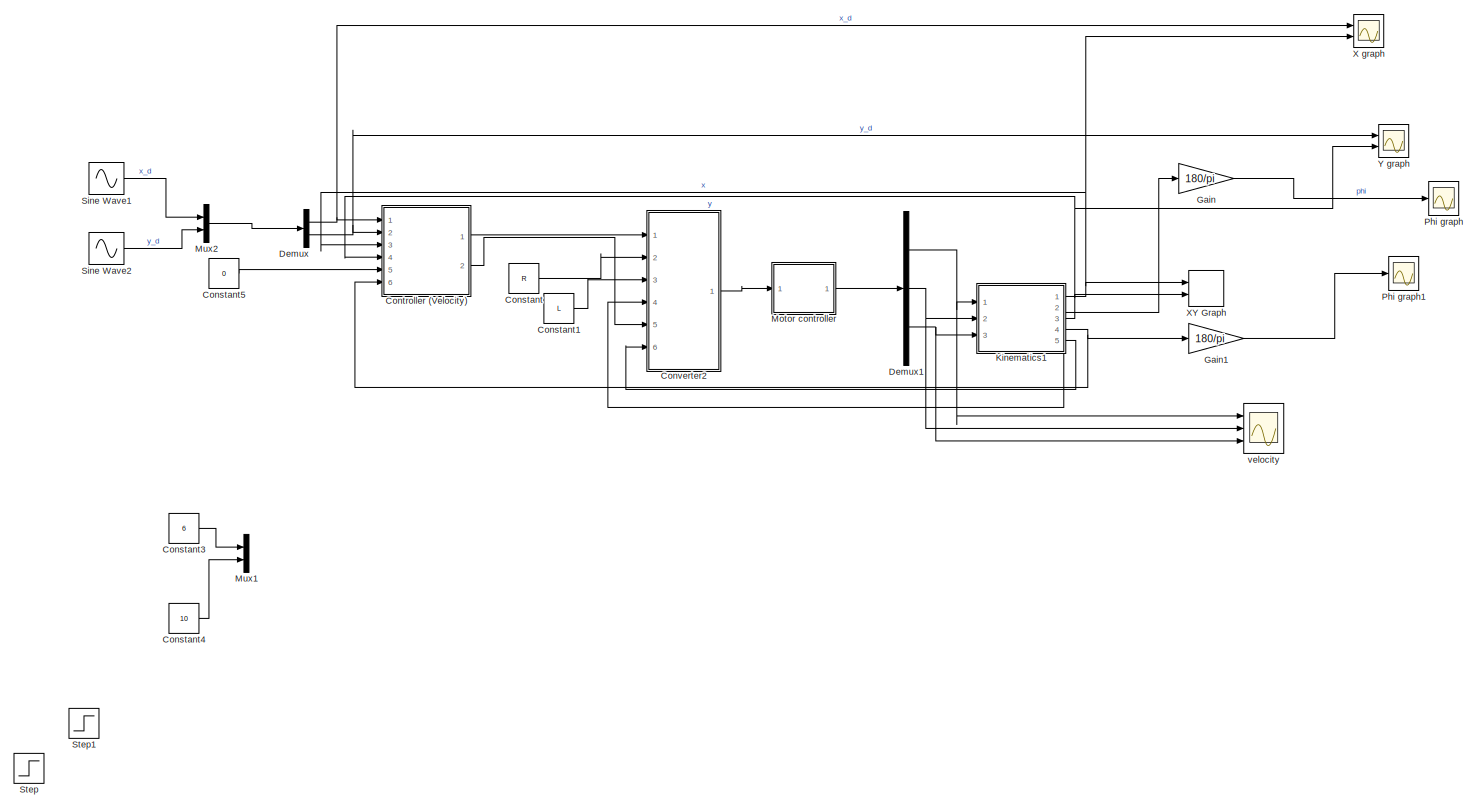
[diagram: root canvas - part 1/1, most of the canvas]
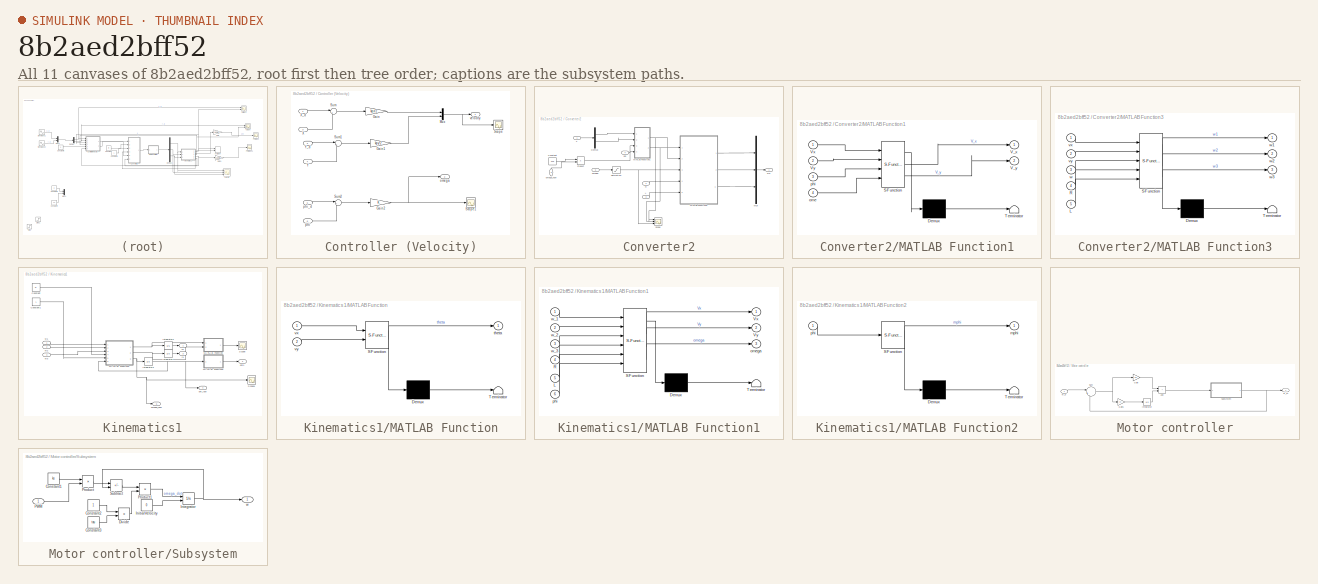
[diagram: thumbnail index - all 11 canvases of the model, root first then tree order]
MODEL slx_8b2aed2bff52
KIND model
CONFIG AbsTol = auto
CONFIG EnableMultiTasking = off
CONFIG FixedStep = auto
CONFIG MaxStep = auto
CONFIG MinStep = auto
CONFIG RelTol = 1e-3
CONFIG SampleTimeConstraint = Unconstrained
CONFIG SolverName = VariableStepAuto
CONFIG StartTime = 0.0
CONFIG StopTime = 200
BLOCK [Constant] Constant
  Value = R
BLOCK [Constant] Constant1
  Value = L
BLOCK [Constant] Constant3
  Value = 6
BLOCK [Constant] Constant4
  Value = 10
BLOCK [Constant] Constant5
  Value = 0
BLOCK [SubSystem] Controller (Velocity)
  Ports = [6, 2]
  RequestExecContextInheritance = off
BLOCK [Gain] Controller (Velocity)/Gain
  Gain = kpx*2
BLOCK [Gain] Controller (Velocity)/Gain1
  Gain = kpy*2
BLOCK [Gain] Controller (Velocity)/Gain2
BLOCK [Mux] Controller (Velocity)/Mux
  DisplayOption = bar
  Inputs = 2
  Ports = [2, 1]
BLOCK [Scope] Controller (Velocity)/Scope
  Floating = off
  NumInputPorts = 1
  Ports = [1]
  ScopeSpecificationString = Simulink.scopes.TimeScopeBlockCfg('CurrentConfiguration', extmgr.ConfigurationSet(extmgr.Configuration('Core','General UI',true),extmgr.Configuration('Core','Source UI',true),extmgr.Configuration('Sources','WiredSimulink',true,'DataLoggingVariableName','ScopeData2'),extmgr.Configuration('Visuals','Time Domain',true,'SerializedDisplays',{struct('MinYLimReal','-4.45958','MaxYLimReal','9.3844','YLabe...<+1367ch>
BLOCK [Scope] Controller (Velocity)/Scope1
  Floating = off
  NumInputPorts = 1
  Ports = [1]
  ScopeSpecificationString = Simulink.scopes.TimeScopeBlockCfg('CurrentConfiguration', extmgr.ConfigurationSet(extmgr.Configuration('Core','General UI',true),extmgr.Configuration('Core','Source UI',true),extmgr.Configuration('Sources','WiredSimulink',true,'DataLoggingVariableName','ScopeData1'),extmgr.Configuration('Visuals','Time Domain',true,'SerializedDisplays',{struct('MinYLimReal','7751.5','MaxYLimReal','10249.83333','YL...<+1409ch>
BLOCK [Sum] Controller (Velocity)/Sum
  Inputs = |+-
  Ports = [2, 1]
BLOCK [Sum] Controller (Velocity)/Sum1
  Inputs = |+-
  Ports = [2, 1]
BLOCK [Sum] Controller (Velocity)/Sum2
  Inputs = |+-
  Ports = [2, 1]
BLOCK [Inport] Controller (Velocity)/X
  Port = 3
BLOCK [Inport] Controller (Velocity)/X_d
BLOCK [Inport] Controller (Velocity)/Y
  Port = 4
BLOCK [Inport] Controller (Velocity)/Y_d
  Port = 2
BLOCK [Outport] Controller (Velocity)/omega
  Port = 2
BLOCK [Inport] Controller (Velocity)/phi
  Port = 6
BLOCK [Inport] Controller (Velocity)/phi_d
  Port = 5
BLOCK [Outport] Controller (Velocity)/velocity
BLOCK [SubSystem] Converter2
  Ports = [6, 1]
  RequestExecContextInheritance = off
BLOCK [Constant] Converter2/Constant
  Value = 0.18
BLOCK [Demux] Converter2/Demux
  Outputs = 2
  Ports = [1, 2]
BLOCK [Inport] Converter2/L
  Port = 3
BLOCK [SubSystem] Converter2/MATLAB Function1
  ErrorFcn = Stateflow.Translate.translate
  PermitHierarchicalResolution = ExplicitOnly
  Ports = [4, 2]
  RequestExecContextInheritance = off
  SFBlockType = MATLAB Function
  TreatAsAtomicUnit = on
BLOCK [Demux] Converter2/MATLAB Function1/ Demux 
  Outputs = 1
  Ports = [1, 1]
BLOCK [S-Function] Converter2/MATLAB Function1/ SFunction 
  EnableBusSupport = on
  FunctionName = sf_sfun
  PortCounts = [4 3]
  Ports = [4, 3]
  SFcnIsStateOwnerBlock = off
  SFunctionDeploymentMode = off
  Tag = Stateflow S-Function 10
BLOCK [Terminator] Converter2/MATLAB Function1/ Terminator 
BLOCK [Outport] Converter2/MATLAB Function1/V_x
BLOCK [Outport] Converter2/MATLAB Function1/V_y
  Port = 2
BLOCK [Inport] Converter2/MATLAB Function1/Vx
BLOCK [Inport] Converter2/MATLAB Function1/Vy
  Port = 2
BLOCK [Inport] Converter2/MATLAB Function1/ome
  Port = 4
BLOCK [Inport] Converter2/MATLAB Function1/phi
  Port = 3
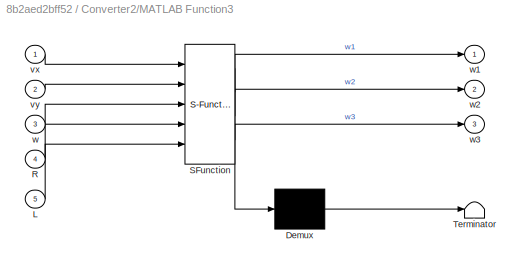
BLOCK [SubSystem] Converter2/MATLAB Function3
  ErrorFcn = Stateflow.Translate.translate
  PermitHierarchicalResolution = ExplicitOnly
  Ports = [5, 3]
  RequestExecContextInheritance = off
  SFBlockType = MATLAB Function
  TreatAsAtomicUnit = on
BLOCK [Demux] Converter2/MATLAB Function3/ Demux 
  Outputs = 1
  Ports = [1, 1]
BLOCK [S-Function] Converter2/MATLAB Function3/ SFunction 
  EnableBusSupport = on
  FunctionName = sf_sfun
  PortCounts = [5 4]
  Ports = [5, 4]
  SFcnIsStateOwnerBlock = off
  SFunctionDeploymentMode = off
  Tag = Stateflow S-Function 11
BLOCK [Terminator] Converter2/MATLAB Function3/ Terminator 
BLOCK [Inport] Converter2/MATLAB Function3/L
  Port = 5
BLOCK [Inport] Converter2/MATLAB Function3/R
  Port = 4
BLOCK [Inport] Converter2/MATLAB Function3/vx
BLOCK [Inport] Converter2/MATLAB Function3/vy
  Port = 2
BLOCK [Inport] Converter2/MATLAB Function3/w
  Port = 3
BLOCK [Outport] Converter2/MATLAB Function3/w1
BLOCK [Outport] Converter2/MATLAB Function3/w2
  Port = 2
BLOCK [Outport] Converter2/MATLAB Function3/w3
  Port = 3
BLOCK [Mux] Converter2/Mux
  DisplayOption = bar
  Inputs = 3
  Ports = [3, 1]
BLOCK [Product] Converter2/Product
  Ports = [2, 1]
BLOCK [Inport] Converter2/R
  Port = 2
BLOCK [Saturate] Converter2/Saturation
  UpperLimit = 10
BLOCK [Scope] Converter2/Scope
  Floating = off
  NumInputPorts = 3
  Ports = [3]
  ScopeSpecificationString = Simulink.scopes.TimeScopeBlockCfg('CurrentConfiguration', extmgr.ConfigurationSet(extmgr.Configuration('Core','General UI',true),extmgr.Configuration('Core','Source UI',true),extmgr.Configuration('Sources','WiredSimulink',true,'DataLoggingVariableName','ScopeData1'),extmgr.Configuration('Visuals','Time Domain',true,'SerializedDisplays',{struct('MinYLimReal','-6.11617','MaxYLimReal','11.2939','YLab...<+3558ch>
BLOCK [Inport] Converter2/omega
  Port = 5
BLOCK [Inport] Converter2/omega_now
  NameLocation = right
  Port = 6
BLOCK [Inport] Converter2/phi
  Port = 4
BLOCK [Inport] Converter2/v
BLOCK [Outport] Converter2/wd
BLOCK [Demux] Demux
  Outputs = 2
  Ports = [1, 2]
BLOCK [Demux] Demux1
  Outputs = 3
  Ports = [1, 3]
BLOCK [Gain] Gain
  Gain = 180/pi
BLOCK [Gain] Gain1
  Gain = 180/pi
BLOCK [SubSystem] Kinematics1
  Ports = [3, 5]
  RequestExecContextInheritance = off
BLOCK [Constant] Kinematics1/Constant
  Value = R
BLOCK [Constant] Kinematics1/Constant1
  Value = L
BLOCK [Integrator] Kinematics1/Integrator1
  Ports = [1, 1]
BLOCK [Integrator] Kinematics1/Integrator2
  Ports = [1, 1]
BLOCK [Integrator] Kinematics1/Integrator3
  Ports = [1, 1]
BLOCK [SubSystem] Kinematics1/MATLAB Function
  ErrorFcn = Stateflow.Translate.translate
  PermitHierarchicalResolution = ExplicitOnly
  Ports = [2, 1]
  RequestExecContextInheritance = off
  SFBlockType = MATLAB Function
  TreatAsAtomicUnit = on
BLOCK [Demux] Kinematics1/MATLAB Function/ Demux 
  Outputs = 1
  Ports = [1, 1]
BLOCK [S-Function] Kinematics1/MATLAB Function/ SFunction 
  EnableBusSupport = on
  FunctionName = sf_sfun
  PortCounts = [2 2]
  Ports = [2, 2]
  SFcnIsStateOwnerBlock = off
  SFunctionDeploymentMode = off
  Tag = Stateflow S-Function 9
BLOCK [Terminator] Kinematics1/MATLAB Function/ Terminator 
BLOCK [Outport] Kinematics1/MATLAB Function/theta
BLOCK [Inport] Kinematics1/MATLAB Function/vx
BLOCK [Inport] Kinematics1/MATLAB Function/vy
  Port = 2
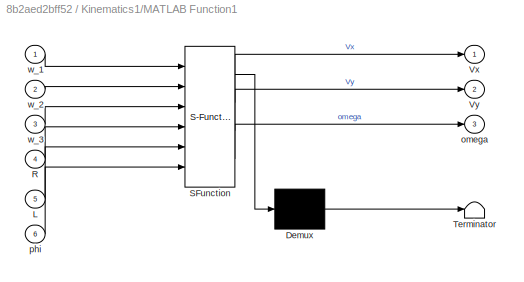
BLOCK [SubSystem] Kinematics1/MATLAB Function1
  ErrorFcn = Stateflow.Translate.translate
  PermitHierarchicalResolution = ExplicitOnly
  Ports = [6, 3]
  RequestExecContextInheritance = off
  SFBlockType = MATLAB Function
  TreatAsAtomicUnit = on
BLOCK [Demux] Kinematics1/MATLAB Function1/ Demux 
  Outputs = 1
  Ports = [1, 1]
BLOCK [S-Function] Kinematics1/MATLAB Function1/ SFunction 
  EnableBusSupport = on
  FunctionName = sf_sfun
  PortCounts = [6 4]
  Ports = [6, 4]
  SFcnIsStateOwnerBlock = off
  SFunctionDeploymentMode = off
  Tag = Stateflow S-Function 2
BLOCK [Terminator] Kinematics1/MATLAB Function1/ Terminator 
BLOCK [Inport] Kinematics1/MATLAB Function1/L
  Port = 5
BLOCK [Inport] Kinematics1/MATLAB Function1/R
  Port = 4
BLOCK [Outport] Kinematics1/MATLAB Function1/Vx
BLOCK [Outport] Kinematics1/MATLAB Function1/Vy
  Port = 2
BLOCK [Outport] Kinematics1/MATLAB Function1/omega
  Port = 3
BLOCK [Inport] Kinematics1/MATLAB Function1/phi
  Port = 6
BLOCK [Inport] Kinematics1/MATLAB Function1/w_1
BLOCK [Inport] Kinematics1/MATLAB Function1/w_2
  Port = 2
BLOCK [Inport] Kinematics1/MATLAB Function1/w_3
  Port = 3
BLOCK [SubSystem] Kinematics1/MATLAB Function2
  ErrorFcn = Stateflow.Translate.translate
  PermitHierarchicalResolution = ExplicitOnly
  Ports = [1, 1]
  RequestExecContextInheritance = off
  SFBlockType = MATLAB Function
  TreatAsAtomicUnit = on
BLOCK [Demux] Kinematics1/MATLAB Function2/ Demux 
  Outputs = 1
  Ports = [1, 1]
BLOCK [S-Function] Kinematics1/MATLAB Function2/ SFunction 
  EnableBusSupport = on
  FunctionName = sf_sfun
  PortCounts = [1 2]
  Ports = [1, 2]
  SFcnIsStateOwnerBlock = off
  SFunctionDeploymentMode = off
  Tag = Stateflow S-Function 5
BLOCK [Terminator] Kinematics1/MATLAB Function2/ Terminator 
BLOCK [Outport] Kinematics1/MATLAB Function2/mphi
BLOCK [Inport] Kinematics1/MATLAB Function2/phi
BLOCK [Scope] Kinematics1/Scope
  Floating = off
  NumInputPorts = 1
  Ports = [1]
  ScopeSpecificationString = Simulink.scopes.TimeScopeBlockCfg('CurrentConfiguration', extmgr.ConfigurationSet(extmgr.Configuration('Core','General UI',true),extmgr.Configuration('Core','Source UI',true),extmgr.Configuration('Sources','WiredSimulink',true,'DataLoggingVariableName','ScopeData1'),extmgr.Configuration('Visuals','Time Domain',true,'SerializedDisplays',{struct('MinYLimReal','-3.90214','MaxYLimReal','3.90677','YLab...<+1405ch>
BLOCK [Scope] Kinematics1/Scope1
  Floating = off
  NumInputPorts = 1
  Ports = [1]
  ScopeSpecificationString = Simulink.scopes.TimeScopeBlockCfg('CurrentConfiguration', extmgr.ConfigurationSet(extmgr.Configuration('Core','General UI',true),extmgr.Configuration('Core','Source UI',true),extmgr.Configuration('Sources','WiredSimulink',true,'DataLoggingVariableName','ScopeData1'),extmgr.Configuration('Visuals','Time Domain',true,'SerializedDisplays',{struct('MinYLimReal','8.93282','MaxYLimReal','10.52957','YLab...<+1431ch>
BLOCK [Outport] Kinematics1/omega_now
  Port = 5
BLOCK [Outport] Kinematics1/phi1
  Port = 2
BLOCK [Outport] Kinematics1/phi_raw
  Port = 4
BLOCK [Inport] Kinematics1/w1
BLOCK [Inport] Kinematics1/w2
  Port = 2
BLOCK [Inport] Kinematics1/w3
  Port = 3
BLOCK [Outport] Kinematics1/x1
BLOCK [Outport] Kinematics1/y1
  Port = 3
BLOCK [SubSystem] Motor controller
  Ports = [1, 1]
  RequestExecContextInheritance = off
BLOCK [Sum] Motor controller/Add
  IconShape = rectangular
  Ports = [2, 1]
BLOCK [Gain] Motor controller/Gain
  Gain = kp
BLOCK [Gain] Motor controller/Gain1
  Gain = ki
BLOCK [Integrator] Motor controller/Integrator
  Ports = [1, 1]
BLOCK [SubSystem] Motor controller/Subsystem
  Ports = [1, 1]
  RequestExecContextInheritance = off
BLOCK [Constant] Motor controller/Subsystem/Constant1
  Value = ks
BLOCK [Constant] Motor controller/Subsystem/Constant2
BLOCK [Constant] Motor controller/Subsystem/Constant3
  Value = tau
BLOCK [Product] Motor controller/Subsystem/Divide
  Inputs = */
  Ports = [2, 1]
BLOCK [Constant] Motor controller/Subsystem/InitialVelocity
  Value = 0
BLOCK [Integrator] Motor controller/Subsystem/Integrator
  InitialConditionSource = external
  Ports = [2, 1]
BLOCK [Inport] Motor controller/Subsystem/PWM
BLOCK [Product] Motor controller/Subsystem/Product
  Ports = [2, 1]
BLOCK [Product] Motor controller/Subsystem/Product1
  Ports = [2, 1]
BLOCK [Sum] Motor controller/Subsystem/Subtract
  IconShape = rectangular
  Inputs = +-
  Ports = [2, 1]
BLOCK [Outport] Motor controller/Subsystem/w
BLOCK [Sum] Motor controller/Sum
  Inputs = |+-
  Ports = [2, 1]
BLOCK [Inport] Motor controller/w_d
BLOCK [Outport] Motor controller/w_m
BLOCK [Mux] Mux1
  DisplayOption = bar
  Inputs = 2
  Ports = [2, 1]
BLOCK [Mux] Mux2
  DisplayOption = bar
  Inputs = 2
  Ports = [2, 1]
BLOCK [Scope] Phi graph
  Floating = off
  NumInputPorts = 1
  Ports = [1]
  ScopeSpecificationString = Simulink.scopes.TimeScopeBlockCfg('CurrentConfiguration', extmgr.ConfigurationSet(extmgr.Configuration('Core','General UI',true),extmgr.Configuration('Core','Source UI',true),extmgr.Configuration('Sources','WiredSimulink',true,'DataLoggingVariableName','ScopeData3'),extmgr.Configuration('Visuals','Time Domain',true,'SerializedDisplays',{struct('MinYLimReal','-0.00000000000000007','MaxYLimReal','0....<+1667ch>
BLOCK [Scope] Phi graph1
  Floating = off
  NumInputPorts = 1
  Ports = [1]
  ScopeSpecificationString = Simulink.scopes.TimeScopeBlockCfg('CurrentConfiguration', extmgr.ConfigurationSet(extmgr.Configuration('Core','General UI',true),extmgr.Configuration('Core','Source UI',true),extmgr.Configuration('Sources','WiredSimulink',true,'DataLoggingVariableName','ScopeData4'),extmgr.Configuration('Visuals','Time Domain',true,'SerializedDisplays',{struct('MinYLimReal','-222.0382','MaxYLimReal','222.4418','YL...<+1547ch>
BLOCK [Sin] Sine Wave1
  Amplitude = 5
  Frequency = 0.15
  Ports = [0, 1]
  SampleTime = 0
BLOCK [Sin] Sine Wave2
  Amplitude = 5
  Frequency = 0.15
  Phase = pi/2
  Ports = [0, 1]
  SampleTime = 0
BLOCK [Step] Step
  After = 2
  SampleTime = 0
BLOCK [Step] Step1
  After = 2
  SampleTime = 0
BLOCK [Scope] X graph
  Floating = off
  NumInputPorts = 2
  Ports = [2]
  ScopeSpecificationString = Simulink.scopes.TimeScopeBlockCfg('CurrentConfiguration', extmgr.ConfigurationSet(extmgr.Configuration('Core','General UI',true),extmgr.Configuration('Core','Source UI',true),extmgr.Configuration('Sources','WiredSimulink',true,'DataLoggingVariableName','ScopeData1'),extmgr.Configuration('Visuals','Time Domain',true,'SerializedDisplays',{struct('MinYLimReal','-6.24987','MaxYLimReal','6.24998','YLab...<+1598ch>
BLOCK [Record] XY Graph
  CompatibilityTag = XY
  FileSettingsInternal = {"entries":[{"content":{"excelSettings":{"content":{},"type":"Streamout.ExcelSettings"}},"type":"Streamout.FileSettingStorage","uuid":"f126f158-b8c3-4049-b826-cb05c3c9d9b4"}],"packageUris":["http://schema.mathworks.com/mf0/streamout_blocks/R2020a"],"version":"1.0"}
  Layout = [1 1]
  Ports = [2]
  SignalsInternal = {"entries":[{"content":{"signals":[{"content":{"blockPath":["new_test/XY Graph"],"channel":[],"dimensions":[1],"domain":"new_test/XY Graph","lineColor":"#a2142f","plots":[1],"port":1,"sid":[""],"signalID":9786,"signalName":"x"},"type":"RecordBlkView.Signal","uuid":"c76f9a00-786b-4790-a8b8-06553de90f4f"},{"content":{"blockPath":["new_test/XY Graph"],"channel":[],"dimensions":[1],"domain":"new_test/...<+351ch>
  VisualizationBindings = {"xyplotplugin":{"info":[{"series":[{"bindingParametersList":[{"parameter":"X-Axis","signalID":9786,"signalName":"x"},{"parameter":"Y-Axis","signalID":9790,"signalName":"y"}],"seriesID":123}],"subplotID":1}]}}
BLOCK [Scope] Y graph
  Floating = off
  NumInputPorts = 2
  Ports = [2]
  ScopeSpecificationString = Simulink.scopes.TimeScopeBlockCfg('CurrentConfiguration', extmgr.ConfigurationSet(extmgr.Configuration('Core','General UI',true),extmgr.Configuration('Core','Source UI',true),extmgr.Configuration('Sources','WiredSimulink',true,'DataLoggingVariableName','ScopeData2'),extmgr.Configuration('Visuals','Time Domain',true,'SerializedDisplays',{struct('MinYLimReal','-6.24999','MaxYLimReal','6.25','YLabelR...<+1590ch>
BLOCK [Scope] velocity
  Floating = off
  NumInputPorts = 3
  Ports = [3]
  ScopeSpecificationString = Simulink.scopes.TimeScopeBlockCfg('CurrentConfiguration', extmgr.ConfigurationSet(extmgr.Configuration('Core','General UI',true),extmgr.Configuration('Core','Source UI',true),extmgr.Configuration('Sources','WiredSimulink',true,'DataLoggingVariableName','ScopeData1'),extmgr.Configuration('Visuals','Time Domain',true,'SerializedDisplays',{struct('MinYLimReal','-82.61422','MaxYLimReal','743.52802','Y...<+2789ch>
LINE Constant1:1 -> Converter2:3
LINE Constant3:1 -> Mux1:1
LINE Constant4:1 -> Mux1:2
LINE Constant5:1 -> Controller (Velocity):5
LINE Constant:1 -> Converter2:2
LINE Controller (Velocity)/Gain1:1 -> Controller (Velocity)/Mux:2
NET Controller (Velocity)/Gain2:1 -> Controller (Velocity)/Scope1:1, Controller (Velocity)/omega:1
LINE Controller (Velocity)/Gain:1 -> Controller (Velocity)/Mux:1
NET Controller (Velocity)/Mux:1 -> Controller (Velocity)/Scope:1, Controller (Velocity)/velocity:1
LINE Controller (Velocity)/Sum1:1 -> Controller (Velocity)/Gain1:1
LINE Controller (Velocity)/Sum2:1 -> Controller (Velocity)/Gain2:1
LINE Controller (Velocity)/Sum:1 -> Controller (Velocity)/Gain:1
LINE Controller (Velocity)/X:1 -> Controller (Velocity)/Sum:2
LINE Controller (Velocity)/X_d:1 -> Controller (Velocity)/Sum:1
LINE Controller (Velocity)/Y:1 -> Controller (Velocity)/Sum1:2
LINE Controller (Velocity)/Y_d:1 -> Controller (Velocity)/Sum1:1
LINE Controller (Velocity)/phi:1 -> Controller (Velocity)/Sum2:2
LINE Controller (Velocity)/phi_d:1 -> Controller (Velocity)/Sum2:1
LINE Controller (Velocity):1 -> Converter2:1
LINE Controller (Velocity):2 -> Converter2:5
LINE Converter2/Constant:1 -> Converter2/Product:1
LINE Converter2/Demux:1 -> Converter2/MATLAB Function1:1
LINE Converter2/Demux:2 -> Converter2/MATLAB Function1:2
LINE Converter2/L:1 -> Converter2/MATLAB Function3:5
NET Converter2/MATLAB Function1:1 -> Converter2/MATLAB Function3:1, Converter2/Scope:1
NET Converter2/MATLAB Function1:2 -> Converter2/MATLAB Function3:2, Converter2/Scope:2
LINE Converter2/MATLAB Function3:1 -> Converter2/Mux:1
LINE Converter2/MATLAB Function3:2 -> Converter2/Mux:2
LINE Converter2/MATLAB Function3:3 -> Converter2/Mux:3
LINE Converter2/Mux:1 -> Converter2/wd:1
LINE Converter2/Product:1 -> Converter2/MATLAB Function1:4
LINE Converter2/R:1 -> Converter2/MATLAB Function3:4
NET Converter2/Saturation:1 -> Converter2/MATLAB Function3:3, Converter2/Scope:3
LINE Converter2/omega:1 -> Converter2/Saturation:1
LINE Converter2/omega_now:1 -> Converter2/Product:2
LINE Converter2/phi:1 -> Converter2/MATLAB Function1:3
LINE Converter2/v:1 -> Converter2/Demux:1
LINE Converter2:1 -> Motor controller:1
NET Demux1:1 -> Kinematics1:1, velocity:1
NET Demux1:2 -> Kinematics1:2, velocity:2
NET Demux1:3 -> Kinematics1:3, velocity:3
NET Demux:1 -> Controller (Velocity):1, X graph:1
NET Demux:2 -> Controller (Velocity):2, Y graph:1
LINE Gain1:1 -> Phi graph1:1
LINE Gain:1 -> Phi graph:1
LINE Kinematics1/Constant1:1 -> Kinematics1/MATLAB Function1:5
LINE Kinematics1/Constant:1 -> Kinematics1/MATLAB Function1:4
LINE Kinematics1/Integrator1:1 -> Kinematics1/y1:1
LINE Kinematics1/Integrator2:1 -> Kinematics1/x1:1
NET Kinematics1/Integrator3:1 -> Kinematics1/MATLAB Function1:6, Kinematics1/MATLAB Function2:1, Kinematics1/phi_raw:1
NET Kinematics1/MATLAB Function1:1 -> Kinematics1/Integrator2:1, Kinematics1/MATLAB Function:1
NET Kinematics1/MATLAB Function1:2 -> Kinematics1/Integrator1:1, Kinematics1/MATLAB Function:2
NET Kinematics1/MATLAB Function1:3 -> Kinematics1/Integrator3:1, Kinematics1/Scope1:1, Kinematics1/omega_now:1
LINE Kinematics1/MATLAB Function2:1 -> Kinematics1/phi1:1
LINE Kinematics1/MATLAB Function:1 -> Kinematics1/Scope:1
LINE Kinematics1/w1:1 -> Kinematics1/MATLAB Function1:1
LINE Kinematics1/w2:1 -> Kinematics1/MATLAB Function1:2
LINE Kinematics1/w3:1 -> Kinematics1/MATLAB Function1:3
NET Kinematics1:1 -> Controller (Velocity):3, X graph:2, XY Graph:1
NET Kinematics1:2 -> Converter2:4, Gain:1
NET Kinematics1:3 -> Controller (Velocity):4, XY Graph:2, Y graph:2
NET Kinematics1:4 -> Controller (Velocity):6, Gain1:1
LINE Kinematics1:5 -> Converter2:6
LINE Motor controller/Add:1 -> Motor controller/Subsystem:1
LINE Motor controller/Gain1:1 -> Motor controller/Integrator:1
LINE Motor controller/Gain:1 -> Motor controller/Add:1
LINE Motor controller/Integrator:1 -> Motor controller/Add:2
LINE Motor controller/Subsystem/Constant1:1 -> Motor controller/Subsystem/Product:1
LINE Motor controller/Subsystem/Constant2:1 -> Motor controller/Subsystem/Divide:1
LINE Motor controller/Subsystem/Constant3:1 -> Motor controller/Subsystem/Divide:2
LINE Motor controller/Subsystem/Divide:1 -> Motor controller/Subsystem/Product1:2
LINE Motor controller/Subsystem/InitialVelocity:1 -> Motor controller/Subsystem/Integrator:2
NET Motor controller/Subsystem/Integrator:1 -> Motor controller/Subsystem/Subtract:2, Motor controller/Subsystem/w:1
LINE Motor controller/Subsystem/PWM:1 -> Motor controller/Subsystem/Product:2
LINE Motor controller/Subsystem/Product1:1 -> Motor controller/Subsystem/Integrator:1
LINE Motor controller/Subsystem/Product:1 -> Motor controller/Subsystem/Subtract:1
LINE Motor controller/Subsystem/Subtract:1 -> Motor controller/Subsystem/Product1:1
NET Motor controller/Subsystem:1 -> Motor controller/Sum:2, Motor controller/w_m:1
NET Motor controller/Sum:1 -> Motor controller/Gain1:1, Motor controller/Gain:1
LINE Motor controller/w_d:1 -> Motor controller/Sum:1
LINE Motor controller:1 -> Demux1:1
LINE Mux2:1 -> Demux:1
LINE Sine Wave1:1 -> Mux2:1
LINE Sine Wave2:1 -> Mux2:2
note: NET lines group one-source signal fan-out (src -> all destinations, sorted); 1:1 wires keep LINE
CHART Kinematics1/MATLAB Function1 states=1 transitions=1
  STATE_LABEL 'eML_blk_kernel()'
  STATE_LABEL 'SCRIPT:\nfunction [Vx,Vy,omega] = fcn(w_1, w_2, w_3, R,L, phi)\nmatrixV = R*[w_1;w_2;w_3];\ncvert = [0 -(sqrt(3)/3) (sqrt(3)/3);\n    2/3 -1/3 -1/3 ;\n    1/3*L 1/3*L 1/3*L];\n\n\na = cvert*matrixV;\nb=[cos(phi) -sin(phi) 0; sin(phi) cos(phi) 0; 0 0 1]*[a(1);a(2);0];\nVx = b(1);\nVy = b(2);\nomega = a(3);'
CHART Kinematics1/MATLAB Function2 states=1 transitions=1
  STATE_LABEL 'eML_blk_kernel()'
  STATE_LABEL 'SCRIPT:\nfunction mphi = fcn(phi)\n\nrphi=mod(phi,2*pi);\n\nif rphi<=-pi\n    mphi=rphi+2*pi;\nelseif rphi>pi\n    mphi=rphi-2*pi;\nelse\n    mphi=rphi;\nend\n'
CHART Kinematics1/MATLAB Function states=1 transitions=1
  STATE_LABEL 'eML_blk_kernel()'
  STATE_LABEL 'SCRIPT:\nfunction theta = fcn(vx,vy)\n\ntheta = atan2(vy,vx);\n'
CHART Converter2/MATLAB Function1 states=1 transitions=1
  STATE_LABEL 'eML_blk_kernel()'
  STATE_LABEL 'SCRIPT:\nfunction [V_x,V_y] = fcn(Vx,Vy,phi,ome)\nmatrixV = [Vx;Vy;0];\na= [cos(-phi) -sin(-phi) 0; sin(-phi) cos(-phi) 0; 0 0 1]*matrixV;\n\n\nV_x = a(1) + ome*a(2);\nV_y = a(2) - ome*a(1);\n'
CHART Converter2/MATLAB Function3 states=1 transitions=1
  STATE_LABEL 'eML_blk_kernel()'
  STATE_LABEL 'SCRIPT:\nfunction [w1,w2,w3] = fcn(vx,vy,w,R,L)\ninvMatrix = [0 1 1/L;\n    -3^(1/2)/2 -1/2 1/L;\n     3^(1/2)/2 -1/2 1/L];\na= [vx;vy;w];\nb= invMatrix*a;\n\nw1 = b(1)/R;\nw2 = b(2)/R;\nw3 = b(3)/R;\n'
CHART  states=0 transitions=0
CHART  states=0 transitions=0
CHART  states=0 transitions=0
CHART  states=0 transitions=0
CHART  states=0 transitions=0
